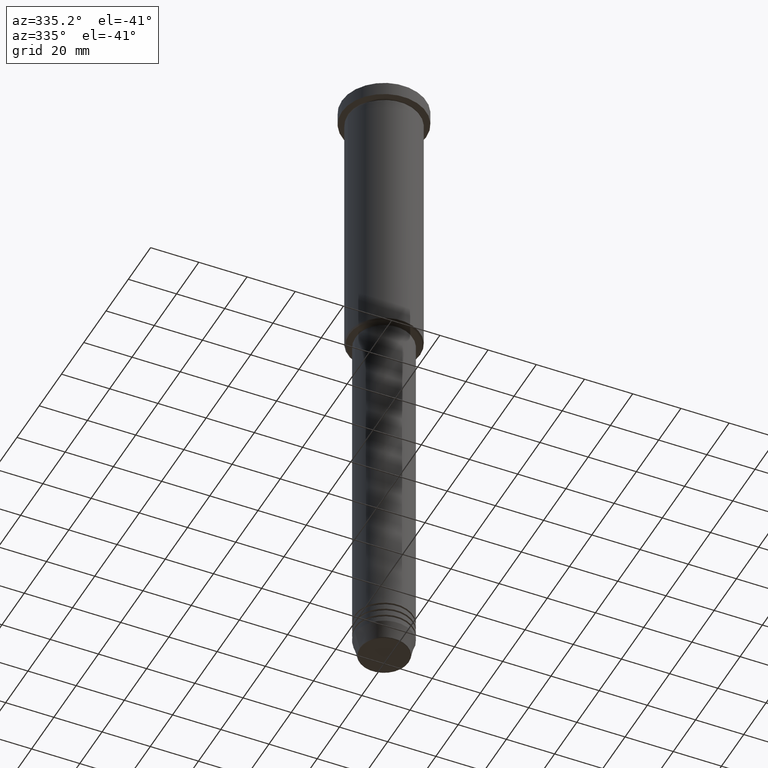
[diagram: clean part render]
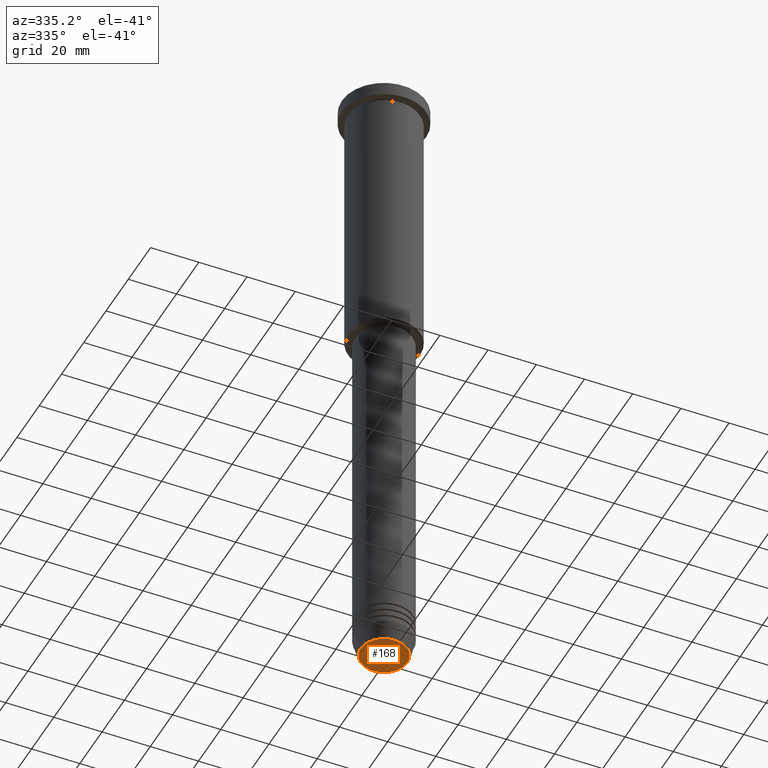
[diagram: same view with one face highlighted and labeled with its STEP entity id]
A machine part, auxiliary view. The second image highlights one B-rep face of the part: STEP entity #168.
In plain terms, the highlighted planar face has unit normal (0, -0, 1).
Its self-contained STEP definition (entity closure, byte-faithful):
#69 = CARTESIAN_POINT ( 'NONE',  ( 0.000000000000000000, 0.000000000000000000, -271.0000000000000000 ) ) ;
#124 = FACE_OUTER_BOUND ( 'NONE', #460, .T. ) ;
#132 = ORIENTED_EDGE ( 'NONE', *, *, #813, .T. ) ;
#140 = AXIS2_PLACEMENT_3D ( 'NONE', #662, #926, #469 ) ;
#168 = ADVANCED_FACE ( 'NONE', ( #124 ), #840, .F. ) ;
#190 = DIRECTION ( 'NONE',  ( 0.000000000000000000, -0.000000000000000000, 1.000000000000000000 ) ) ;
#211 = CIRCLE ( 'NONE', #140, 9.740692158992658278 ) ;
#303 = DIRECTION ( 'NONE',  ( 1.000000000000000000, 0.000000000000000000, 0.000000000000000000 ) ) ;
#362 = CARTESIAN_POINT ( 'NONE',  ( 9.740692158992658278, 0.000000000000000000, -271.0000000000000000 ) ) ;
#381 = CARTESIAN_POINT ( 'NONE',  ( 0.000000000000000000, 0.000000000000000000, -271.0000000000000000 ) ) ;
#400 = VERTEX_POINT ( 'NONE', #629 ) ;
#460 = EDGE_LOOP ( 'NONE', ( #132, #916 ) ) ;
#469 = DIRECTION ( 'NONE',  ( 1.000000000000000000, 0.000000000000000000, 0.000000000000000000 ) ) ;
#542 = AXIS2_PLACEMENT_3D ( 'NONE', #69, #605, #578 ) ;
#578 = DIRECTION ( 'NONE',  ( 1.000000000000000000, 0.000000000000000000, 0.000000000000000000 ) ) ;
#605 = DIRECTION ( 'NONE',  ( 0.000000000000000000, 0.000000000000000000, -1.000000000000000000 ) ) ;
#629 = CARTESIAN_POINT ( 'NONE',  ( -9.740692158992658278, 1.222463696683474999E-15, -271.0000000000000000 ) ) ;
#662 = CARTESIAN_POINT ( 'NONE',  ( 0.000000000000000000, 0.000000000000000000, -271.0000000000000000 ) ) ;
#692 = CIRCLE ( 'NONE', #542, 9.740692158992658278 ) ;
#712 = AXIS2_PLACEMENT_3D ( 'NONE', #381, #190, #303 ) ;
#813 = EDGE_CURVE ( 'NONE', #1054, #400, #692, .T. ) ;
#840 = PLANE ( 'NONE',  #712 ) ;
#916 = ORIENTED_EDGE ( 'NONE', *, *, #1136, .T. ) ;
#926 = DIRECTION ( 'NONE',  ( 0.000000000000000000, 0.000000000000000000, -1.000000000000000000 ) ) ;
#1054 = VERTEX_POINT ( 'NONE', #362 ) ;
#1136 = EDGE_CURVE ( 'NONE', #400, #1054, #211, .T. ) ;